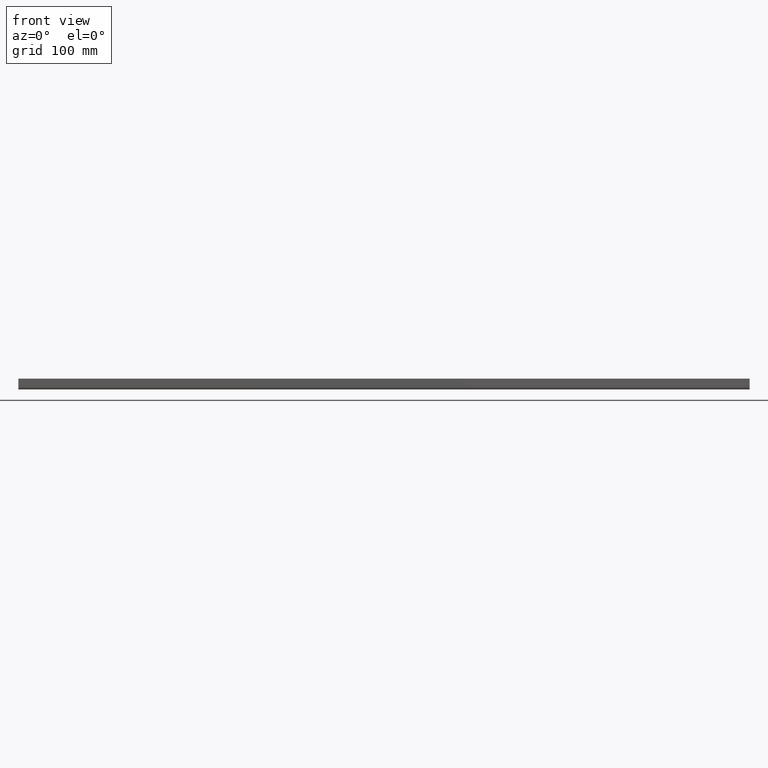
[diagram: clean part render]
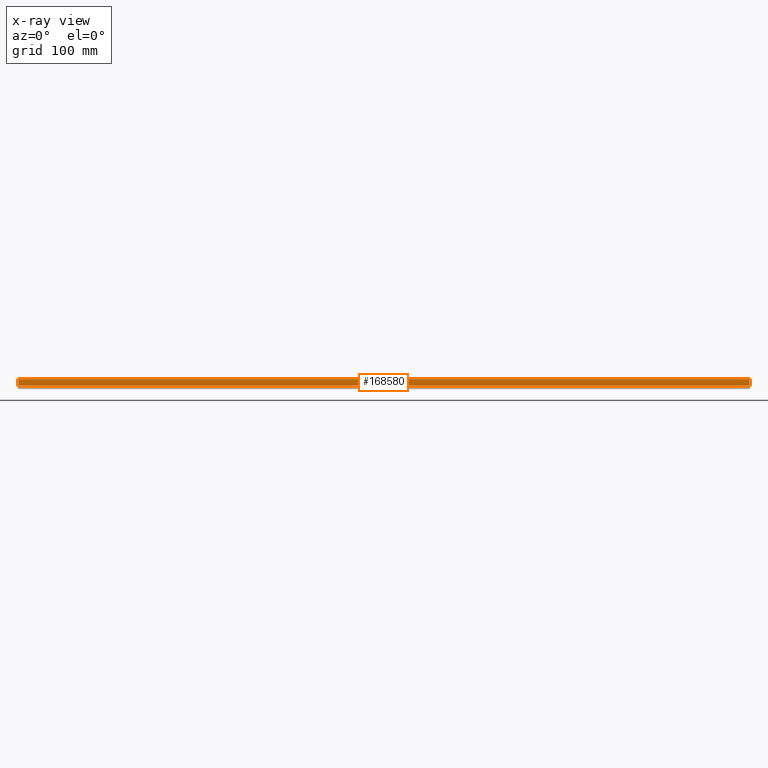
[diagram: x-ray — body ghosted, one internal face saturated and labeled with its STEP entity id]
A machine part, front view, then the same camera in x-ray: the body is ghosted and one INTERNAL B-rep face — a face not visible from any outside direction — is saturated and labeled: STEP entity #168580.
In plain terms, the highlighted planar face has unit normal (0, -0.9796, 0.201).
Its self-contained STEP definition (entity closure, byte-faithful):
#94160=CARTESIAN_POINT('',(16.8292337257153,2.41477253414868,-2.5));
#94170=VERTEX_POINT('',#94160);
#94200=CARTESIAN_POINT('',(0.,5.86859651024096,-2.5));
#94210=DIRECTION('',(0.979583521863371,-0.20103761760863,0.));
#94220=VECTOR('',#94210,1.);
#94230=LINE('',#94200,#94220);
#94240=CARTESIAN_POINT('',(7.80000000000004,4.26782089249222,-2.5));
#94250=VERTEX_POINT('',#94240);
#94260=EDGE_CURVE('',#94250,#94170,#94230,.T.);
#141860=CARTESIAN_POINT('',(7.80000000000004,4.26782089249222,0.));
#141870=DIRECTION('',(0.,0.,-1.));
#141880=VECTOR('',#141870,1.);
#141890=LINE('',#141860,#141880);
#141900=CARTESIAN_POINT('',(7.80000000000004,4.26782089249222,-1009.5));
#141910=VERTEX_POINT('',#141900);
#141920=EDGE_CURVE('',#94250,#141910,#141890,.T.);
#145260=CARTESIAN_POINT('',(0.,5.86859651024096,-1009.5));
#145270=DIRECTION('',(-0.979583521863371,0.20103761760863,0.));
#145280=VECTOR('',#145270,1.);
#145290=LINE('',#145260,#145280);
#145300=CARTESIAN_POINT('',(16.8292337257153,2.41477253414868,-1009.5));
#145310=VERTEX_POINT('',#145300);
#145320=EDGE_CURVE('',#145310,#141910,#145290,.T.);
#168420=CARTESIAN_POINT('',(16.8292337257153,2.41477253414868,-1009.5));
#168430=DIRECTION('',(-0.20103761760863,-0.979583521863371,0.));
#168440=DIRECTION('',(0.979583521863371,-0.20103761760863,0.));
#168450=AXIS2_PLACEMENT_3D('',#168420,#168430,#168440);
#168460=PLANE('',#168450);
#168470=ORIENTED_EDGE('',*,*,#141920,.T.);
#168480=ORIENTED_EDGE('',*,*,#94260,.F.);
#168490=CARTESIAN_POINT('',(16.8292337257153,2.41477253414868,-1009.5));
#168500=DIRECTION('',(0.,0.,1.));
#168510=VECTOR('',#168500,1.);
#168520=LINE('',#168490,#168510);
#168530=EDGE_CURVE('',#145310,#94170,#168520,.T.);
#168540=ORIENTED_EDGE('',*,*,#168530,.T.);
#168550=ORIENTED_EDGE('',*,*,#145320,.F.);
#168560=EDGE_LOOP('',(#168550,#168540,#168480,#168470));
#168570=FACE_OUTER_BOUND('',#168560,.T.);
#168580=ADVANCED_FACE('',(#168570),#168460,.T.);